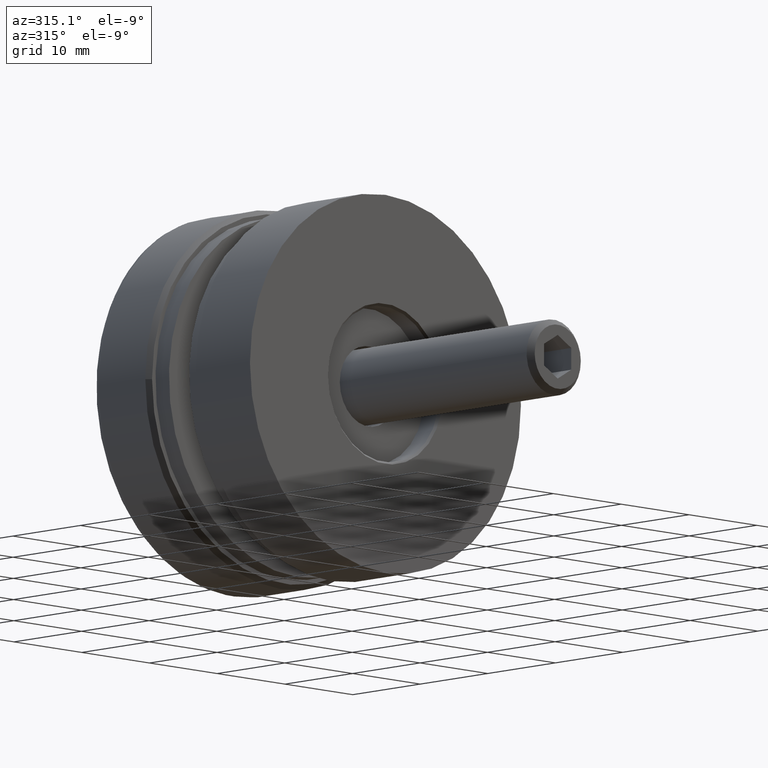
[diagram: clean part render]
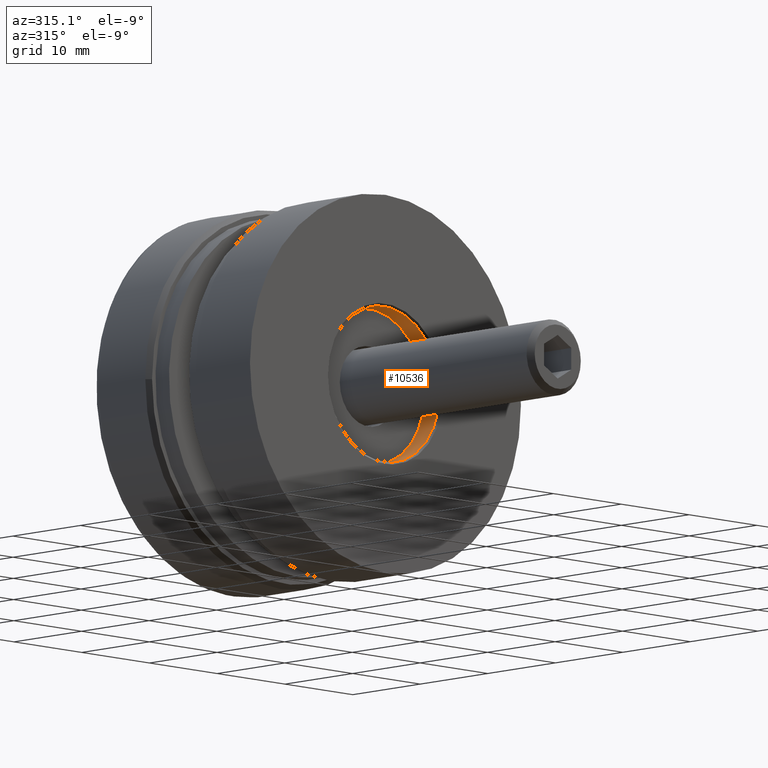
[diagram: same view with one face highlighted and labeled with its STEP entity id]
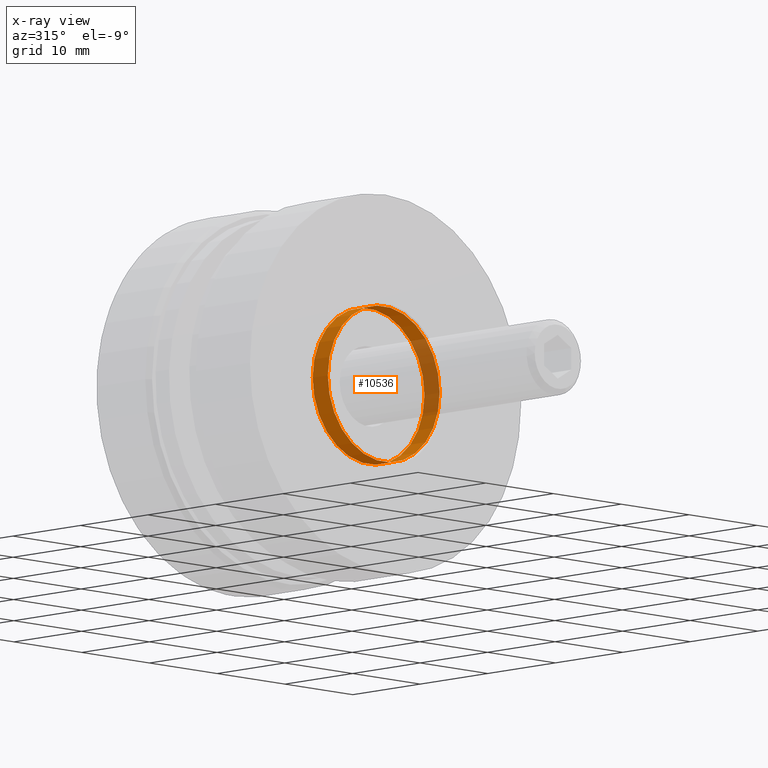
[diagram: x-ray of the same camera — body ghosted, the highlighted face saturated]
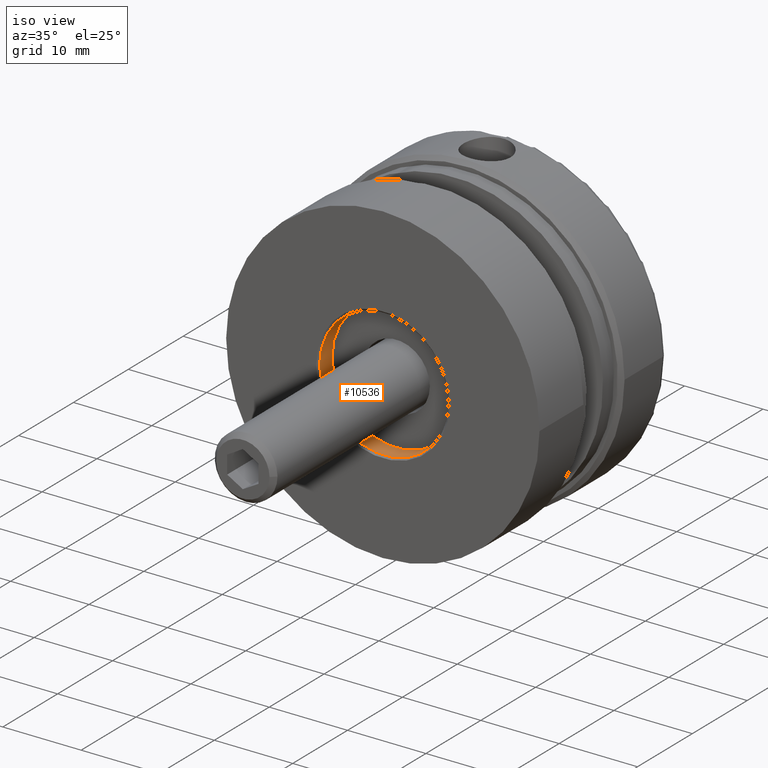
[diagram: same view with one face highlighted and labeled with its STEP entity id]
A machine part, auxiliary view. The second image highlights one B-rep face of the part: STEP entity #10536.
The next image is the same camera in x-ray: the body ghosted, the highlighted face saturated — about 24% of this face is hidden behind the body in this view.
A second angle (iso view) of the same face is appended — the face is thin or edge-on in the first view.
In plain terms, the highlighted cylindrical surface (bore or boss wall) has radius 8.25 mm, axis along (-0, 1, -0).
Its self-contained STEP definition (entity closure, byte-faithful):
#631 = VERTEX_POINT ( 'NONE', #2030 ) ;
#1672 = CARTESIAN_POINT ( 'NONE',  ( 1.084202172485485206E-16, 0.2499999999999958922, 0.000000000000000000 ) ) ;
#2030 = CARTESIAN_POINT ( 'NONE',  ( -8.249999999999998224, 2.500000000000000444, 0.000000000000000000 ) ) ;
#2769 = DIRECTION ( 'NONE',  ( 4.336808689942017736E-16, 1.000000000000000000, -0.000000000000000000 ) ) ;
#3521 = EDGE_CURVE ( 'NONE', #631, #631, #13370, .T. ) ;
#3607 = CIRCLE ( 'NONE', #10795, 8.249999999999998224 ) ;
#4018 = AXIS2_PLACEMENT_3D ( 'NONE', #12005, #5049, #4528 ) ;
#4528 = DIRECTION ( 'NONE',  ( -1.000000000000000000, 4.205390244792259832E-16, 0.000000000000000000 ) ) ;
#5049 = DIRECTION ( 'NONE',  ( 4.336808689942017736E-16, 1.000000000000000000, -0.000000000000000000 ) ) ;
#5502 = VERTEX_POINT ( 'NONE', #9051 ) ;
#5562 = CYLINDRICAL_SURFACE ( 'NONE', #6828, 8.250000000000000000 ) ;
#6828 = AXIS2_PLACEMENT_3D ( 'NONE', #12455, #7919, #10239 ) ;
#7919 = DIRECTION ( 'NONE',  ( 4.336808689942017736E-16, 1.000000000000000000, -0.000000000000000000 ) ) ;
#8625 = DIRECTION ( 'NONE',  ( -1.000000000000000000, 4.336808689942018722E-16, 0.000000000000000000 ) ) ;
#9033 = FACE_OUTER_BOUND ( 'NONE', #13211, .T. ) ;
#9051 = CARTESIAN_POINT ( 'NONE',  ( -8.249999999999998224, 0.2499999999999994726, 0.000000000000000000 ) ) ;
#9691 = EDGE_LOOP ( 'NONE', ( #11583 ) ) ;
#9840 = ORIENTED_EDGE ( 'NONE', *, *, #3521, .T. ) ;
#10239 = DIRECTION ( 'NONE',  ( -1.000000000000000000, 4.205390244792259832E-16, 0.000000000000000000 ) ) ;
#10536 = ADVANCED_FACE ( 'NONE', ( #9033, #11757 ), #5562, .F. ) ;
#10795 = AXIS2_PLACEMENT_3D ( 'NONE', #1672, #2769, #8625 ) ;
#11583 = ORIENTED_EDGE ( 'NONE', *, *, #11990, .F. ) ;
#11757 = FACE_OUTER_BOUND ( 'NONE', #9691, .T. ) ;
#11990 = EDGE_CURVE ( 'NONE', #5502, #5502, #3607, .T. ) ;
#12005 = CARTESIAN_POINT ( 'NONE',  ( 1.084202172485502856E-15, 2.499999999999996891, 0.000000000000000000 ) ) ;
#12455 = CARTESIAN_POINT ( 'NONE',  ( 3.469446951953614189E-15, 8.000000000000000000, 0.000000000000000000 ) ) ;
#13211 = EDGE_LOOP ( 'NONE', ( #9840 ) ) ;
#13370 = CIRCLE ( 'NONE', #4018, 8.250000000000000000 ) ;